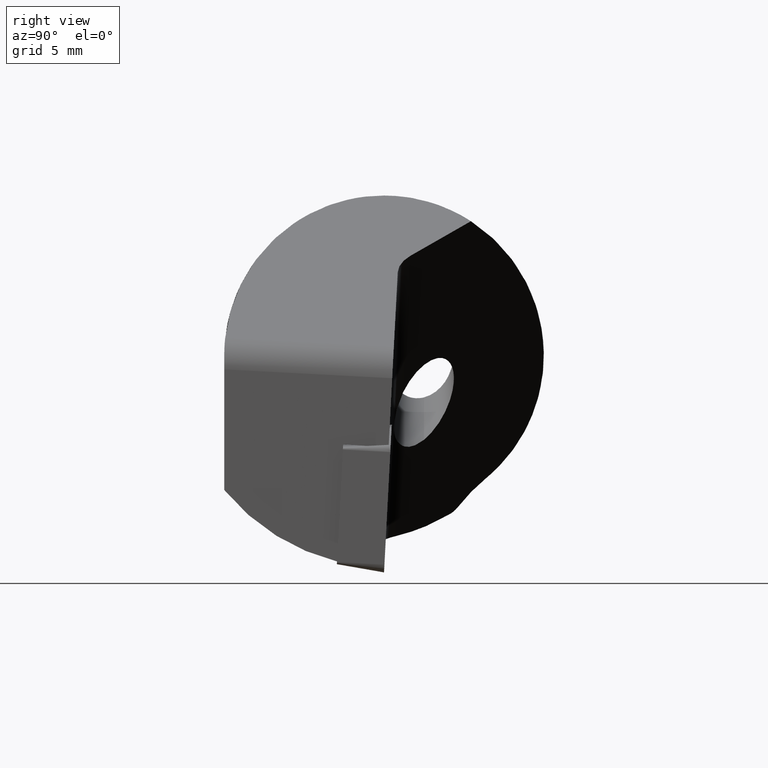
[diagram: clean part render]
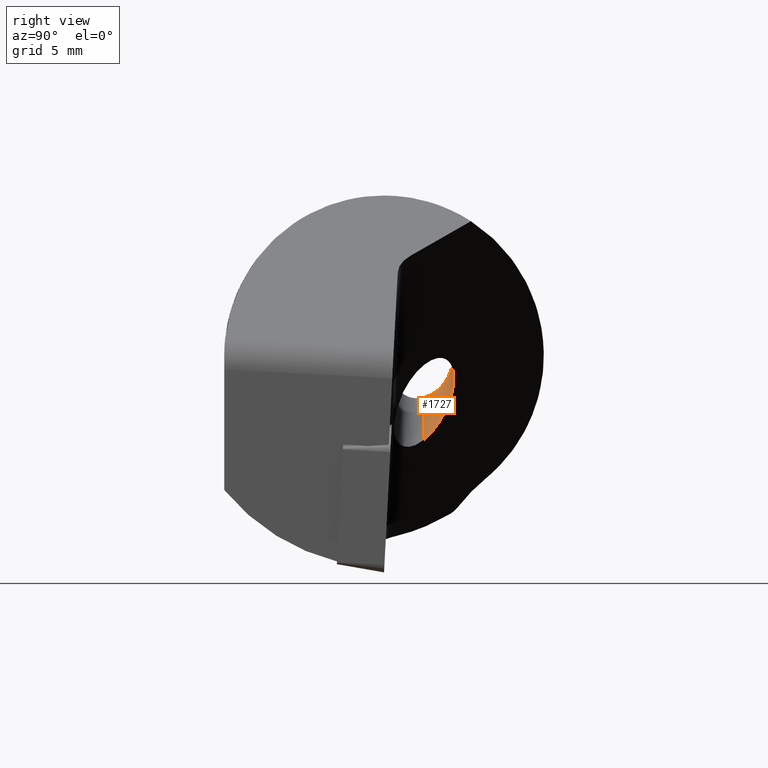
[diagram: same view with one face highlighted and labeled with its STEP entity id]
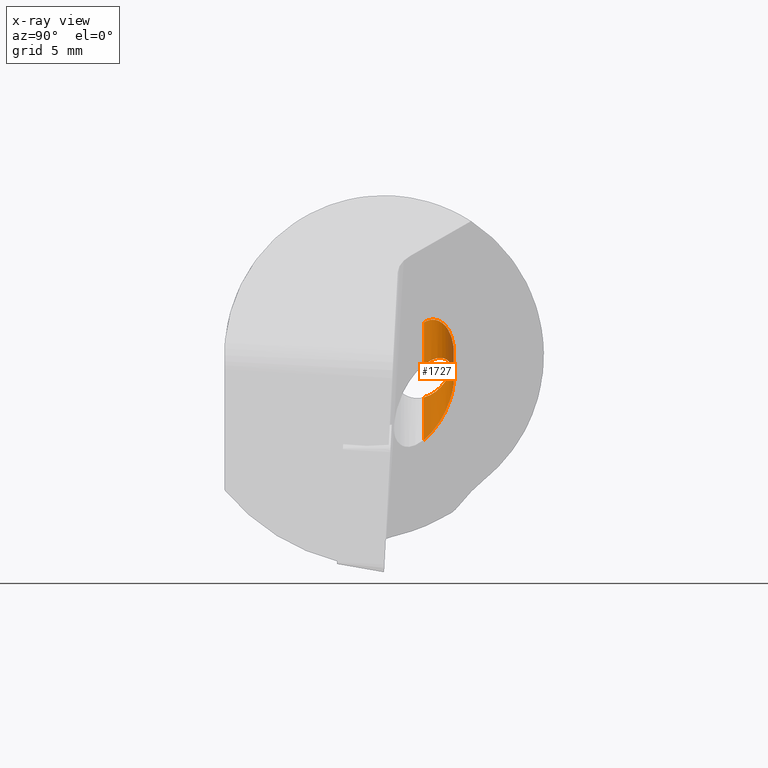
[diagram: x-ray of the same camera — body ghosted, the highlighted face saturated]
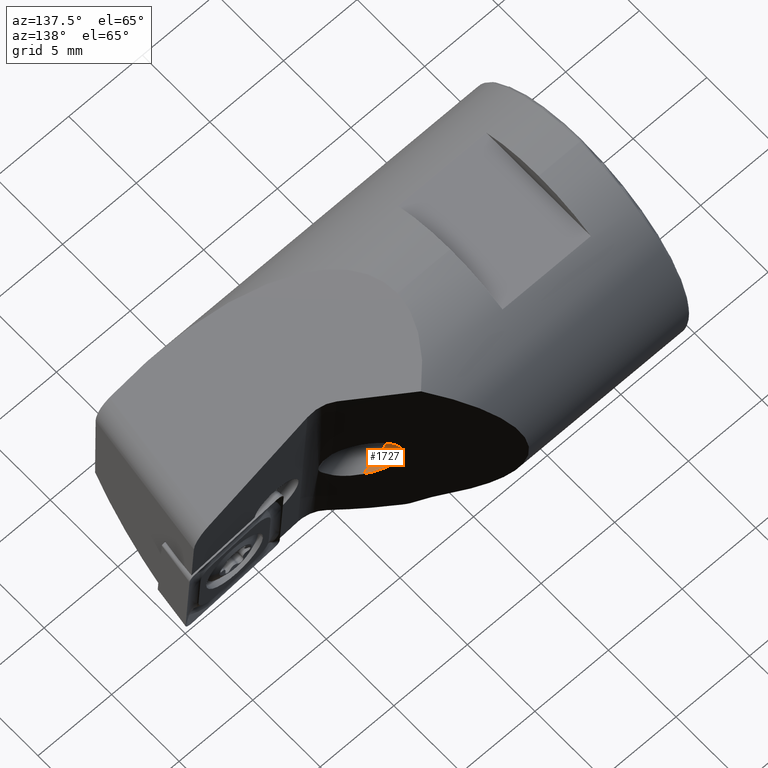
[diagram: same view with one face highlighted and labeled with its STEP entity id]
A machine part, right view. The second image highlights one B-rep face of the part: STEP entity #1727.
The next image is the same camera in x-ray: the body ghosted, the highlighted face saturated — about 0% of this face is hidden behind the body in this view.
A second angle (auxiliary view) of the same face is appended — the face is thin or edge-on in the first view.
In plain terms, the highlighted cylindrical surface (edge-blend (fillet) strip) has radius 1.5 mm, axis along (0.766, 0, -0.6428).
Its self-contained STEP definition (entity closure, byte-faithful):
#40 = VECTOR ( 'NONE', #3513, 1000.000000000000000 ) ;
#49 = CARTESIAN_POINT ( 'NONE',  ( -3.718918898617606900, 1.999999999999999100, 5.078654410206681300 ) ) ;
#75 = FACE_OUTER_BOUND ( 'NONE', #2599, .T. ) ;
#261 = AXIS2_PLACEMENT_3D ( 'NONE', #4099, #4307, #4325 ) ;
#324 = EDGE_CURVE ( 'NONE', #905, #2845, #1995, .T. ) ;
#333 = CARTESIAN_POINT ( 'NONE',  ( -10.24962553608042800, 1.999999999999998200, 6.642346073031926100 ) ) ;
#371 = ORIENTED_EDGE ( 'NONE', *, *, #324, .F. ) ;
#444 = VERTEX_POINT ( 'NONE', #3310 ) ;
#499 = EDGE_CURVE ( 'NONE', #444, #926, #4049, .T. ) ;
#661 = CARTESIAN_POINT ( 'NONE',  ( -13.06880422508392500, 3.209460943525465300, 9.782845066918824300 ) ) ;
#681 = ORIENTED_EDGE ( 'NONE', *, *, #499, .F. ) ;
#714 = ORIENTED_EDGE ( 'NONE', *, *, #2622, .F. ) ;
#808 = CARTESIAN_POINT ( 'NONE',  ( -13.11924805264698400, 3.447600203079102000, 10.44610150922140900 ) ) ;
#905 = VERTEX_POINT ( 'NONE', #2863 ) ;
#926 = VERTEX_POINT ( 'NONE', #1486 ) ;
#1014 = ORIENTED_EDGE ( 'NONE', *, *, #2964, .T. ) ;
#1325 = CARTESIAN_POINT ( 'NONE',  ( -13.14571282280496700, 3.507612116744906100, 11.14910071729482000 ) ) ;
#1486 = CARTESIAN_POINT ( 'NONE',  ( -12.59495687594902500, 1.999999999999997100, 12.52653460330103000 ) ) ;
#1727 = ADVANCED_FACE ( 'NONE', ( #75 ), #4723, .F. ) ;
#1994 = LINE ( 'NONE', #3480, #40 ) ;
#1995 =( BOUNDED_CURVE ( )  B_SPLINE_CURVE ( 3, ( #4041, #4667, #4246, #333 ),
 .UNSPECIFIED., .F., .F. ) 
 B_SPLINE_CURVE_WITH_KNOTS ( ( 4, 4 ),
 ( 2.113802278111442500, 5.255394931701236100 ),
 .UNSPECIFIED. ) 
 CURVE ( )  GEOMETRIC_REPRESENTATION_ITEM ( )  RATIONAL_B_SPLINE_CURVE ( ( 1.000000000000000000, 0.3333333333333332000, 0.3333333333333332000, 1.000000000000000000 ) ) 
 REPRESENTATION_ITEM ( '' )  );
#2585 = CARTESIAN_POINT ( 'NONE',  ( -12.88031848073117500, 2.495819303666056800, 12.66214243926026100 ) ) ;
#2599 = EDGE_LOOP ( 'NONE', ( #714, #681, #1014, #371 ) ) ;
#2622 = EDGE_CURVE ( 'NONE', #926, #905, #4626, .T. ) ;
#2670 = CARTESIAN_POINT ( 'NONE',  ( -12.92188332586547100, 2.519222340202766000, 9.000966025399137000 ) ) ;
#2691 = VECTOR ( 'NONE', #4740, 1000.000000000000000 ) ;
#2845 = VERTEX_POINT ( 'NONE', #3721 ) ;
#2863 = CARTESIAN_POINT ( 'NONE',  ( -10.05328847769556900, 1.999999999999998200, 10.39382158775159800 ) ) ;
#2964 = EDGE_CURVE ( 'NONE', #444, #2845, #1994, .T. ) ;
#3026 = CARTESIAN_POINT ( 'NONE',  ( -13.14242324910138900, 3.378531635588378500, 11.83650563472004600 ) ) ;
#3146 = CARTESIAN_POINT ( 'NONE',  ( -12.97074644014245100, 2.708863312365055600, 12.61607921964079500 ) ) ;
#3164 = CARTESIAN_POINT ( 'NONE',  ( -13.14938290481833100, 3.487655912101209000, 11.38151013655896200 ) ) ;
#3174 = CARTESIAN_POINT ( 'NONE',  ( -13.08651756948457400, 3.080271920831710600, 12.34668215435505800 ) ) ;
#3175 = CARTESIAN_POINT ( 'NONE',  ( -12.59495687594902500, 1.999999999999997100, 12.52653460330103000 ) ) ;
#3199 = CARTESIAN_POINT ( 'NONE',  ( -12.82701536034055100, 2.386745395743052000, 12.65984211786509500 ) ) ;
#3236 = CARTESIAN_POINT ( 'NONE',  ( -12.78224725515488700, 1.999999999999998200, 8.767468023418880200 ) ) ;
#3246 = CARTESIAN_POINT ( 'NONE',  ( -13.08828341786692900, 3.308347308211841300, 9.997429872836903500 ) ) ;
#3250 = CARTESIAN_POINT ( 'NONE',  ( -12.65487067566346500, 2.087801625873253500, 12.57680825054385000 ) ) ;
#3283 = CARTESIAN_POINT ( 'NONE',  ( -12.84530319614424000, 2.217470276185264500, 8.836250687014908700 ) ) ;
#3294 = CARTESIAN_POINT ( 'NONE',  ( -12.71491244540087700, 2.184112165954498000, 12.61704759338294200 ) ) ;
#3310 = CARTESIAN_POINT ( 'NONE',  ( -12.78224725515488700, 1.999999999999998200, 8.767468023418880200 ) ) ;
#3320 = CARTESIAN_POINT ( 'NONE',  ( -12.98543706455490800, 2.795793863984859400, 9.215451792993544400 ) ) ;
#3368 = CARTESIAN_POINT ( 'NONE',  ( -13.13231765975928100, 3.288179767357357600, 12.06131947555915600 ) ) ;
#3422 = CARTESIAN_POINT ( 'NONE',  ( -13.13057743015358600, 3.487524836499936500, 10.67643000759363900 ) ) ;
#3455 = CARTESIAN_POINT ( 'NONE',  ( -13.00820550348014100, 2.813283425258354500, 12.56756184136886200 ) ) ;
#3480 = CARTESIAN_POINT ( 'NONE',  ( -5.647281727677228200, 1.999999999999999100, 2.780521080849750200 ) ) ;
#3513 = DIRECTION ( 'NONE',  ( 0.7660444431189770100, 1.256883473624698500E-016, -0.6427876096865405800 ) ) ;
#3721 = CARTESIAN_POINT ( 'NONE',  ( -10.24962553608042800, 1.999999999999998200, 6.642346073031926100 ) ) ;
#3785 = CARTESIAN_POINT ( 'NONE',  ( -13.01723995935259600, 2.952664029117294800, 9.391069514423547200 ) ) ;
#3788 = CARTESIAN_POINT ( 'NONE',  ( -12.89845138895112700, 2.422076036691146700, 8.939126642289490800 ) ) ;
#4000 = CARTESIAN_POINT ( 'NONE',  ( -13.06608861761392700, 2.999618619359738900, 12.43164339253577900 ) ) ;
#4041 = CARTESIAN_POINT ( 'NONE',  ( -10.05328847769556900, 1.999999999999998200, 10.39382158775159800 ) ) ;
#4049 = B_SPLINE_CURVE_WITH_KNOTS ( 'NONE', 3,
 ( #3236, #4526, #3283, #3788, #2670, #3320, #3785, #661, #3246, #808, #3422, #1325, #3164, #3026, #3368, #3174, #4000, #3455, #3146, #2585, #3199, #3294, #3250, #3175 ),
 .UNSPECIFIED., .F., .F.,
 ( 4, 2, 2, 2, 2, 2, 2, 2, 2, 2, 2, 4 ),
 ( 0.0003427057123587733800, 0.0006939075531850566900, 0.001045109394011340100, 0.001747513075663903800, 0.002449916757316467200, 0.003152320438969031000, 0.003854724120621594700, 0.004557127802274157900, 0.004908329643100437800, 0.005259531483926717700, 0.005610733324752996800, 0.005961935165579275800 ),
 .UNSPECIFIED. ) ;
#4099 = CARTESIAN_POINT ( 'NONE',  ( -4.683100313147417800, 1.999999999999999100, 3.929587745528215800 ) ) ;
#4246 = CARTESIAN_POINT ( 'NONE',  ( -13.11948406875641700, 4.999999999999999100, 9.050443309331333500 ) ) ;
#4307 = DIRECTION ( 'NONE',  ( 0.7660444431189770100, 1.256883473624698500E-016, -0.6427876096865405800 ) ) ;
#4325 = DIRECTION ( 'NONE',  ( -0.6427876096865404700, 0.0000000000000000000, -0.7660444431189772400 ) ) ;
#4526 = CARTESIAN_POINT ( 'NONE',  ( -12.81526421165986400, 2.109020749394320500, 8.795172539444802600 ) ) ;
#4626 = LINE ( 'NONE', #49, #2691 ) ;
#4667 = CARTESIAN_POINT ( 'NONE',  ( -12.92314701037156200, 4.999999999999998200, 12.80191882405100800 ) ) ;
#4723 = CYLINDRICAL_SURFACE ( 'NONE', #261, 1.499999999999999300 ) ;
#4740 = DIRECTION ( 'NONE',  ( 0.7660444431189770100, 1.256883473624698500E-016, -0.6427876096865405800 ) ) ;